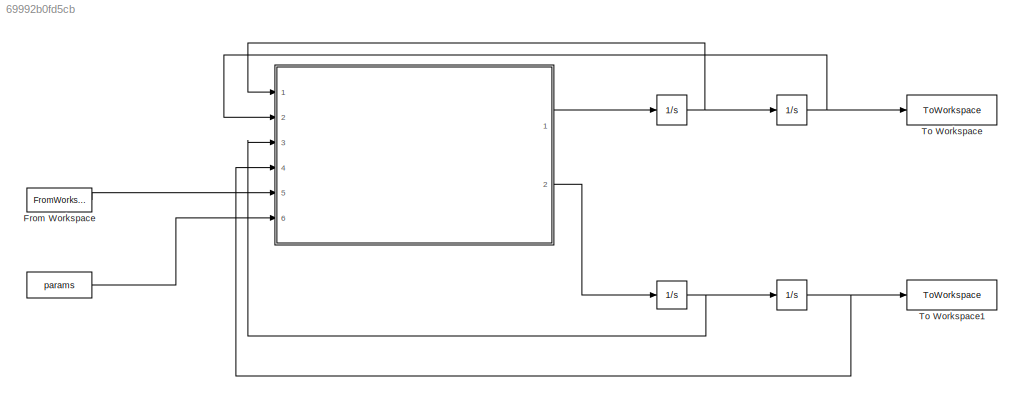
MODEL slx_69992b0fd5cb
KIND model
CONFIG AbsTol = auto
CONFIG EnableMultiTasking = on
CONFIG FixedStep = auto
CONFIG MaxStep = auto
CONFIG MinStep = auto
CONFIG RelTol = 1e-3
CONFIG SampleTimeConstraint = Unconstrained
CONFIG Solver = VariableStepAuto
CONFIG SolverName = VariableStepAuto
CONFIG StartTime = 0.0
CONFIG StopTime = 500
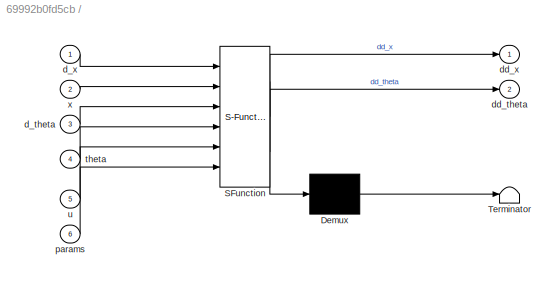
BLOCK [SubSystem]  
  ErrorFcn = Stateflow.Translate.translate
  PermitHierarchicalResolution = ExplicitOnly
  Ports = [6, 2]
  RequestExecContextInheritance = off
  SFBlockType = MATLAB Function
  TreatAsAtomicUnit = on
BLOCK [Demux]  / Demux 
  Outputs = 1
  Ports = [1, 1]
BLOCK [S-Function]  / SFunction 
  EnableBusSupport = on
  FunctionName = sf_sfun
  PortCounts = [6 3]
  Ports = [6, 3]
  SFcnIsStateOwnerBlock = off
  SFunctionDeploymentMode = off
  Tag = Stateflow S-Function 2
BLOCK [Terminator]  / Terminator 
BLOCK [Inport]  /d_theta
  Port = 3
BLOCK [Inport]  /d_x
BLOCK [Outport]  /dd_theta
  Port = 2
BLOCK [Outport]  /dd_x
BLOCK [Inport]  /params
  Port = 6
BLOCK [Inport]  /theta
  Port = 4
BLOCK [Inport]  /u
  Port = 5
BLOCK [Inport]  /x
  Port = 2
BLOCK [FromWorkspace] From Workspace
  VariableName = u
BLOCK [ToWorkspace] To Workspace
  FixptAsFi = on
  MaxDataPoints = inf
  Ports = [1]
  SampleTime = -1
  SaveFormat = Timeseries
  VariableName = y2
BLOCK [ToWorkspace] To Workspace1
  FixptAsFi = on
  MaxDataPoints = inf
  Ports = [1]
  SampleTime = -1
  SaveFormat = Timeseries
  VariableName = y1
NET  :1 ->  :1,  :2,  :3,  :4,  :6, To Workspace1:1, To Workspace:1
LINE  :2 ->  :1
LINE From Workspace:1 ->  :5
note: NET lines group one-source signal fan-out (src -> all destinations, sorted); 1:1 wires keep LINE
CHART 






























 states=1 transitions=1
  STATE_LABEL 'eML_blk_kernel()'
  STATE_LABEL 'SCRIPT:\nfunction [dd_x, dd_theta] = fcn(d_x, x, d_theta, theta, u, params)\n    dd_x = params.l * (d_theta)^2 - (params.k*x)/params.m + params.g*cos(theta) - params.zeta * d_x;\n    dd_theta = (-params.g*sin(theta))/params.l - (2 * d_x * d_theta)/params.l - params.zeta * d_theta + u/(params.m * params.l^2);\ny = u;'
CHART  states=0 transitions=0
